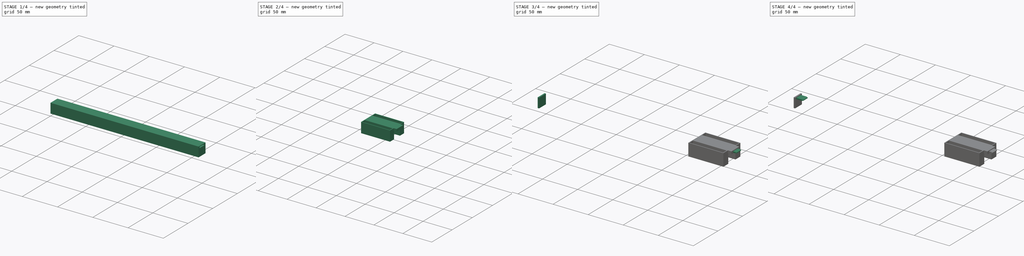
[diagram: build sequence overview — one tinted view per stage of 4, left to right]
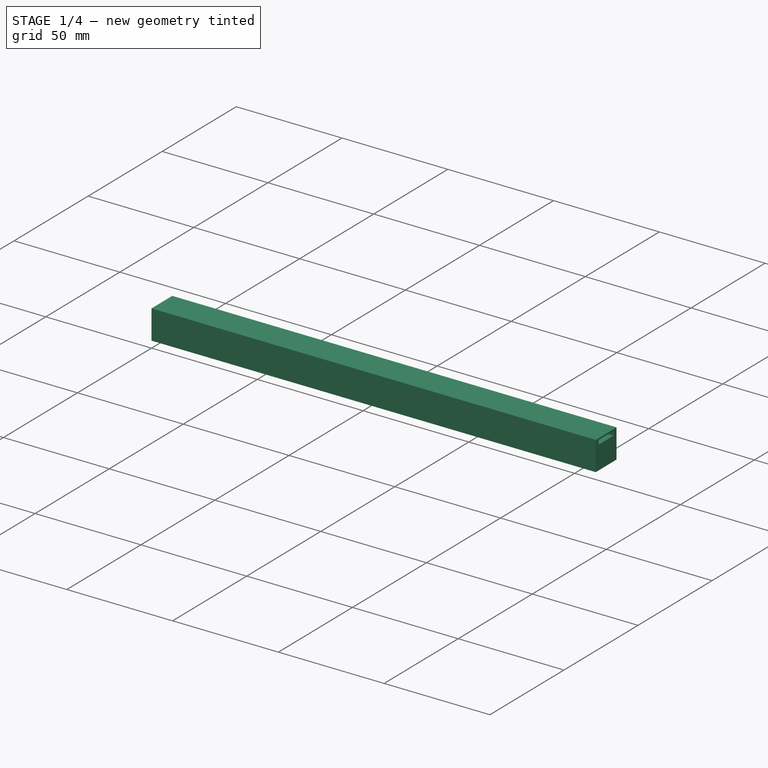
[diagram: stage 1 of 4 — iso view after this stage's code; geometry added in this stage tinted green]
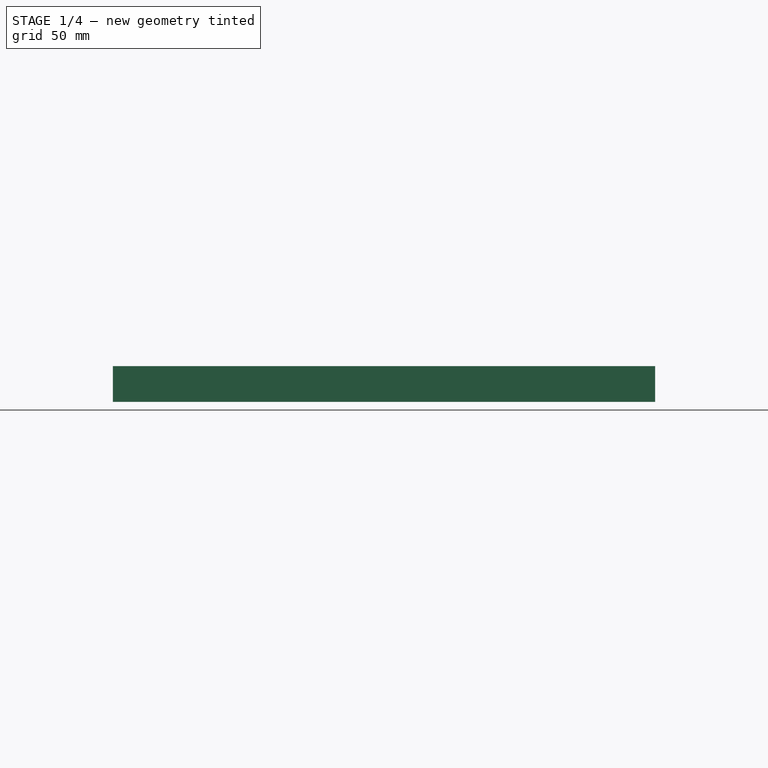
[diagram: stage 1 of 4 — front view after this stage's code; geometry added in this stage tinted green]
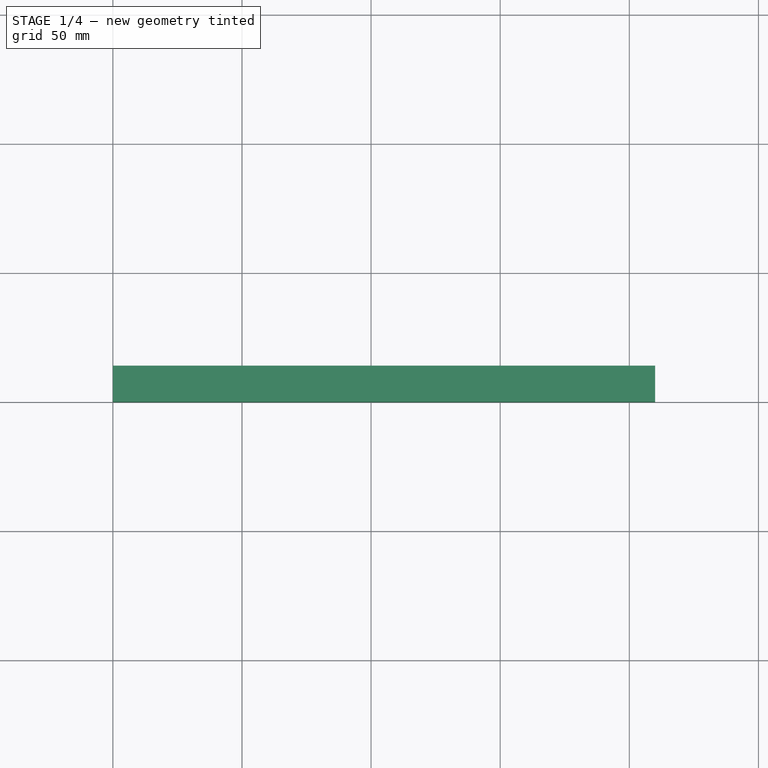
[diagram: stage 1 of 4 — top view after this stage's code; geometry added in this stage tinted green]
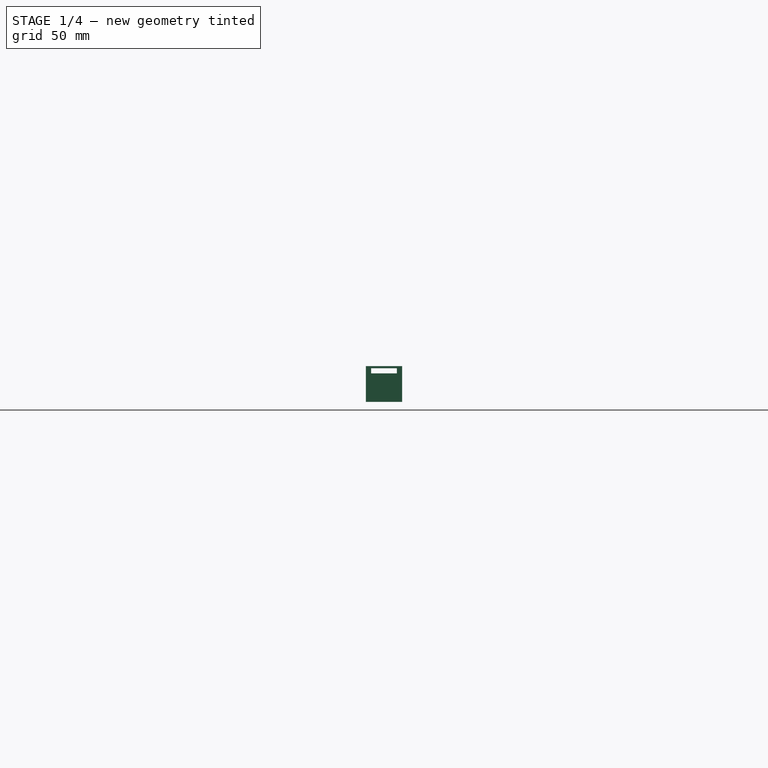
[diagram: stage 1 of 4 — right view after this stage's code; geometry added in this stage tinted green]
FCSTD DOCUMENT  (FreeCAD 0.21R33694 (Git))
Label: maglev3
License: All rights reserved
LicenseURL: http://en.wikipedia.org/wiki/All_rights_reserved
objects: Sketcher::SketchObject×8, PartDesign::Pad×6, PartDesign::Body×4, PartDesign::Pocket×2, PartDesign::Chamfer×2, PartDesign::ShapeBinder×2
note: 34 computed .brp shape members not serialized (recipe doc carries the construction recipe); baked Part::Feature solids carry a one-line shape summary decoded from their .brp

FEATURE [Sketcher::SketchObject] Sketch
  FullyConstrained = true
  MapMode = 5
  Support = -> [XY_Plane]
  sketch-geometry (4):
    g0: LineSegment StartX=0 StartY=0 StartZ=0 EndX=210 EndY=0 EndZ=0
    g1: LineSegment StartX=210 StartY=0 StartZ=0 EndX=210 EndY=14 EndZ=0
    g2: LineSegment StartX=210 StartY=14 StartZ=0 EndX=0 EndY=14 EndZ=0
    g3: LineSegment StartX=0 StartY=14 StartZ=0 EndX=0 EndY=0 EndZ=0
  constraints (11):
    c: Coincident(g0,g1)
    c: Coincident(g1,g2)
    c: Coincident(g2,g3)
    c: Coincident(g3,g0)
    c: Horizontal(g0)
    c: Horizontal(g2)
    c: Vertical(g1)
    c: Vertical(g3)
    c: Coincident(g0,g-1)
    c: DistanceX(g0,g0) = 210
    c: DistanceY(g3,g3) = 14
FEATURE [PartDesign::Pad] Pad
  Direction = (0,0,1)
  Length = 13.8
  Length2 = 10
  Profile = -> Sketch
  ReferenceAxis = -> Sketch [N_Axis]
  Type = 0
FEATURE [Sketcher::SketchObject] Sketch001
  ExternalGeometry = -> [Pad]
  FullyConstrained = true
  MapMode = 5
  Placement = pos=(0,0,0) rot=(0.57735,-0.57735,-0.57735;2.0944rad)
  Support = -> [Pad]
  sketch-geometry (6):
    g0: LineSegment StartX=-12 StartY=13 StartZ=0 EndX=-2 EndY=13 EndZ=0
    g1: LineSegment StartX=-2 StartY=13 StartZ=0 EndX=-2 EndY=11 EndZ=0
    g2: LineSegment StartX=-2 StartY=11 StartZ=0 EndX=-12 EndY=11 EndZ=0
    g3: LineSegment StartX=-12 StartY=11 StartZ=0 EndX=-12 EndY=13 EndZ=0
    g4: LineSegment StartX=-12 StartY=11 StartZ=0 EndX=-14 EndY=11 EndZ=0
    g5: LineSegment StartX=-2 StartY=11 StartZ=0 EndX=0 EndY=11 EndZ=0
  constraints (18):
    c: Coincident(g0,g1)
    c: Coincident(g1,g2)
    c: Coincident(g2,g3)
    c: Coincident(g3,g0)
    c: Horizontal(g0)
    c: Horizontal(g2)
    c: Vertical(g1)
    c: Vertical(g3)
    c: DistanceX(g2,g2) = 10
    c: DistanceY(g1,g1) = 2
    c: DistanceY(g0,g-3) = 0.8
    c: Coincident(g4,g2)
    c: PointOnObject(g4,g-5)
    c: Coincident(g5,g1)
    c: PointOnObject(g5,g-3)
    c: Horizontal(g5)
    c: Horizontal(g4)
    c: Equal(g5,g4)
FEATURE [PartDesign::Pocket] Pocket
  BaseFeature = -> Pad
  Direction = (1,0,0)
  Length = 5
  Length2 = 5
  Profile = -> Sketch001
  ReferenceAxis = -> Sketch001 [N_Axis]
  Type = 1
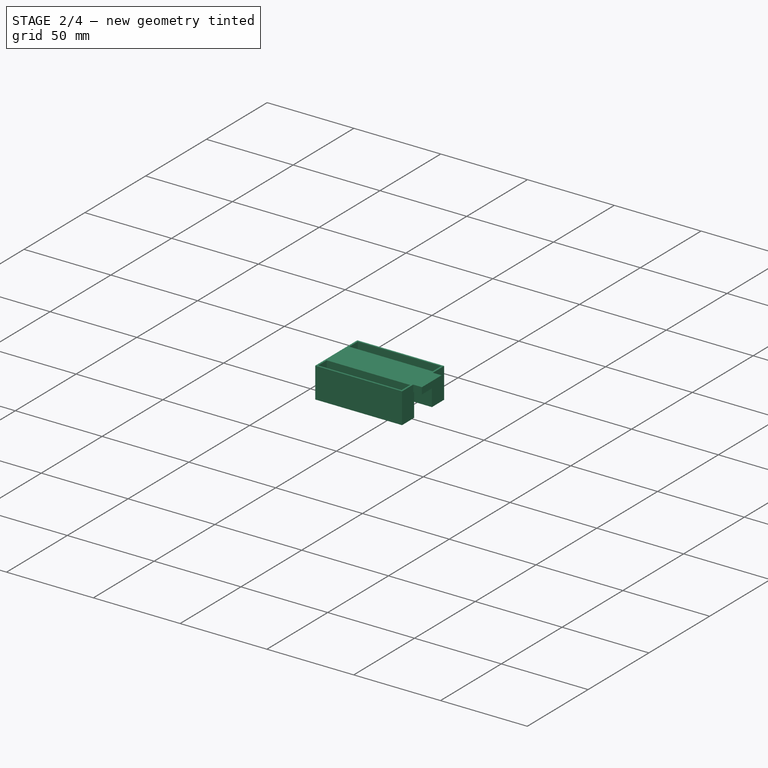
[diagram: stage 2 of 4 — iso view after this stage's code; geometry added in this stage tinted green]
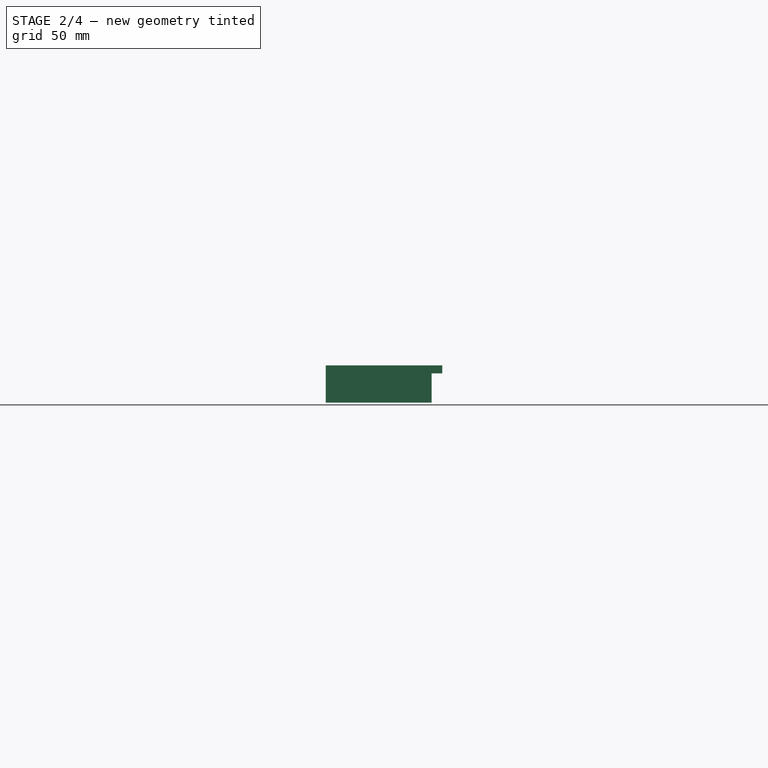
[diagram: stage 2 of 4 — front view after this stage's code; geometry added in this stage tinted green]
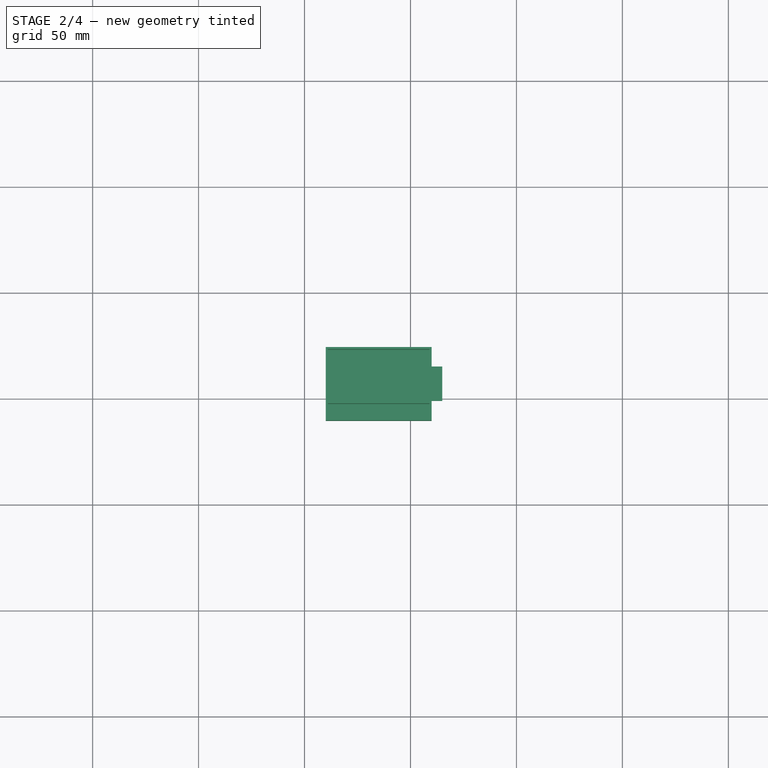
[diagram: stage 2 of 4 — top view after this stage's code; geometry added in this stage tinted green]
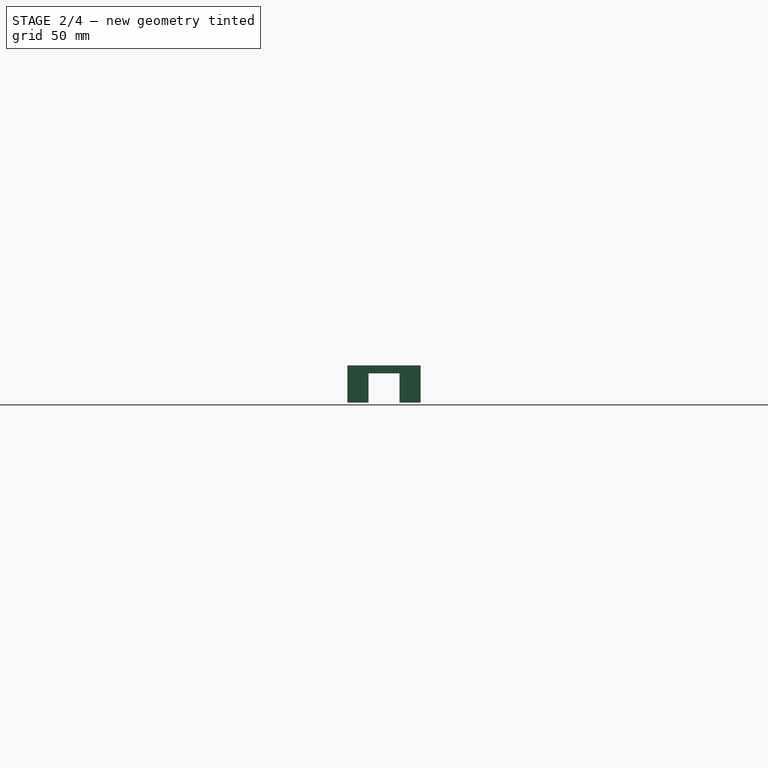
[diagram: stage 2 of 4 — right view after this stage's code; geometry added in this stage tinted green]
FEATURE [PartDesign::Body] Body001  label="Plug"
  Group = -> [Sketch002,Pad001,Sketch003,Pad002,Chamfer]
  Origin = -> Origin001
  Tip = -> Chamfer
FEATURE [PartDesign::ShapeBinder] ShapeBinder
  Support = -> [Pocket]
  TraceSupport = false
FEATURE [Sketcher::SketchObject] Sketch004
  ExternalGeometry = -> [ShapeBinder]
  FullyConstrained = true
  MapMode = 5
  Placement = pos=(210,0,0) rot=(0.57735,0.57735,0.57735;2.0944rad)
  Support = -> [ShapeBinder]
  sketch-geometry (16):
    g0: LineSegment StartX=-0.3 StartY=1 StartZ=0 EndX=-10.3 EndY=1 EndZ=0
    g1: LineSegment StartX=-10.3 StartY=1 StartZ=0 EndX=-10.3 EndY=18.6 EndZ=0
    g2: LineSegment StartX=-10.3 StartY=18.6 StartZ=0 EndX=24.3 EndY=18.6 EndZ=0
    g3: LineSegment StartX=24.3 StartY=18.6 StartZ=0 EndX=24.3 EndY=1 EndZ=0
    g4: LineSegment StartX=24.3 StartY=1 StartZ=0 EndX=14.3 EndY=1 EndZ=0
    g5: LineSegment StartX=14.3 StartY=1 StartZ=0 EndX=14.3 EndY=14.8 EndZ=0
    g6: LineSegment StartX=14.3 StartY=14.8 StartZ=0 EndX=-0.3 EndY=14.8 EndZ=0
    g7: LineSegment StartX=-0.3 StartY=14.8 StartZ=0 EndX=-0.3 EndY=1 EndZ=0
    g8: LineSegment StartX=-0.3 StartY=1 StartZ=0 EndX=0 EndY=1 EndZ=0
    g9: LineSegment StartX=14.3 StartY=1 StartZ=0 EndX=14 EndY=1 EndZ=0
    g10: LineSegment StartX=2 StartY=15.6 StartZ=0 EndX=12 EndY=15.6 EndZ=0
    g11: LineSegment StartX=12 StartY=15.6 StartZ=0 EndX=12 EndY=17.6 EndZ=0
    g12: LineSegment StartX=12 StartY=17.6 StartZ=0 EndX=2 EndY=17.6 EndZ=0
    g13: LineSegment StartX=2 StartY=17.6 StartZ=0 EndX=2 EndY=15.6 EndZ=0
    g14: LineSegment StartX=12 StartY=17.6 StartZ=0 EndX=24.3 EndY=17.6 EndZ=0
    g15: LineSegment StartX=2 StartY=17.6 StartZ=0 EndX=-10.3 EndY=17.6 EndZ=0
  constraints (48):
    c: Horizontal(g0)
    c: Coincident(g1,g0)
    c: Vertical(g1)
    c: Coincident(g2,g1)
    c: Horizontal(g2)
    c: Coincident(g3,g2)
    c: Vertical(g3)
    c: Coincident(g4,g3)
    c: Horizontal(g4)
    c: Coincident(g5,g4)
    c: Vertical(g5)
    c: Coincident(g6,g5)
    c: Horizontal(g6)
    c: Coincident(g7,g6)
    c: Coincident(g7,g0)
    c: Vertical(g7)
    c: Equal(g7,g5)
    c: Equal(g4,g0)
    c: Coincident(g8,g0)
    c: Horizontal(g8)
    c: Coincident(g9,g4)
    c: PointOnObject(g9,g-3)
    c: Horizontal(g9)
    c: DistanceY(g-4,g5) = 1
    c: Coincident(g10,g11)
    c: Coincident(g11,g12)
    c: Coincident(g12,g13)
    c: Coincident(g13,g10)
    c: Horizontal(g10)
    c: Horizontal(g12)
    c: Vertical(g11)
    c: Vertical(g13)
    c: DistanceX(g12,g12) = 10
    c: DistanceY(g11,g11) = 2
    c: DistanceY(g6,g10) = 0.8
    c: Coincident(g14,g11)
    c: PointOnObject(g14,g3)
    c: Horizontal(g14)
    c: Coincident(g15,g12)
    c: PointOnObject(g15,g1)
    c: Horizontal(g15)
    c: Equal(g15,g14)
    c: DistanceY(g11,g2) = 1
    c: Equal(g9,g8)
    c: PointOnObject(g8,g-2)
    c: DistanceX(g0,g0) = 10
    c: DistanceX(g-3,g4) = 0.3
    c: DistanceY(g-1,g0) = 1
FEATURE [PartDesign::Pad] Pad003
  Direction = (1,0,0)
  Length = 50
  Length2 = 10
  Profile = -> Sketch004
  ReferenceAxis = -> Sketch004 [N_Axis]
  Type = 0
FEATURE [PartDesign::ShapeBinder] ShapeBinder001
  Placement = pos=(50,0,0) rot=(0,0,1;0rad)
  Support = -> [Pad003]
  TraceSupport = false
FEATURE [Sketcher::SketchObject] Sketch005
  FullyConstrained = true
  MapMode = 5
  Placement = pos=(260,0,0) rot=(0.57735,0.57735,0.57735;2.0944rad)
  Support = -> [ShapeBinder001]
  sketch-geometry (4):
    g0: LineSegment StartX=-1.1 StartY=18.6 StartZ=0 EndX=15.1 EndY=18.6 EndZ=0
    g1: LineSegment StartX=15.1 StartY=18.6 StartZ=0 EndX=15.1 EndY=14.8 EndZ=0
    g2: LineSegment StartX=15.1 StartY=14.8 StartZ=0 EndX=-1.1 EndY=14.8 EndZ=0
    g3: LineSegment StartX=-1.1 StartY=14.8 StartZ=0 EndX=-1.1 EndY=18.6 EndZ=0
  constraints (12):
    c: Coincident(g0,g1)
    c: Coincident(g1,g2)
    c: Coincident(g2,g3)
    c: Coincident(g3,g0)
    c: Horizontal(g0)
    c: Horizontal(g2)
    c: Vertical(g1)
    c: Vertical(g3)
    c: DistanceX(g0,g0) = 16.2
    c: DistanceY(g1,g1) = 3.8
    c: DistanceY(g-1,g2) = 14.8
    c: DistanceX(g2,g-1) = 1.1
FEATURE [PartDesign::Pad] Pad004
  Direction = (1,0,0)
  Length = 5
  Length2 = 10
  Placement = pos=(50,0,0) rot=(0,0,1;0rad)
  Profile = -> Sketch005
  ReferenceAxis = -> Sketch005 [N_Axis]
  Type = 0
FEATURE [PartDesign::Body] Body003  label="loco plug"
  Group = -> [ShapeBinder001,Sketch005,Pad004,Sketch006,Pad005,Chamfer001]
  Origin = -> Origin003
  Tip = -> Chamfer001
FEATURE [Sketcher::SketchObject] Sketch007
  ExternalGeometry = -> [Pad003]
  FullyConstrained = true
  MapMode = 5
  Placement = pos=(0,0,18.6) rot=(0,0,1;0rad)
  Support = -> [Pad003]
  sketch-geometry (14):
    g0: LineSegment StartX=211 StartY=23.3 StartZ=0 EndX=259 EndY=23.3 EndZ=0
    g1: LineSegment StartX=259 StartY=23.3 StartZ=0 EndX=259 EndY=16.3 EndZ=0
    g2: LineSegment StartX=259 StartY=16.3 StartZ=0 EndX=211 EndY=16.3 EndZ=0
    g3: LineSegment StartX=211 StartY=16.3 StartZ=0 EndX=211 EndY=23.3 EndZ=0
    g4: LineSegment StartX=211 StartY=-2.3 StartZ=0 EndX=259 EndY=-2.3 EndZ=0
    g5: LineSegment StartX=259 StartY=-2.3 StartZ=0 EndX=259 EndY=-9.3 EndZ=0
    g6: LineSegment StartX=259 StartY=-9.3 StartZ=0 EndX=211 EndY=-9.3 EndZ=0
    g7: LineSegment StartX=211 StartY=-9.3 StartZ=0 EndX=211 EndY=-2.3 EndZ=0
    g8: LineSegment StartX=211 StartY=23.3 StartZ=0 EndX=210 EndY=23.3 EndZ=0
    g9: LineSegment StartX=211 StartY=23.3 StartZ=0 EndX=211 EndY=24.3 EndZ=0
    g10: LineSegment StartX=259 StartY=23.3 StartZ=0 EndX=260 EndY=23.3 EndZ=0
    g11: LineSegment StartX=259 StartY=-9.3 StartZ=0 EndX=260 EndY=-9.3 EndZ=0
    g12: LineSegment StartX=211 StartY=-9.3 StartZ=0 EndX=210 EndY=-9.3 EndZ=0
    g13: LineSegment StartX=211 StartY=-9.3 StartZ=0 EndX=211 EndY=-10.3 EndZ=0
  constraints (42):
    c: Coincident(g0,g1)
    c: Coincident(g1,g2)
    c: Coincident(g2,g3)
    c: Coincident(g3,g0)
    c: Horizontal(g0)
    c: Horizontal(g2)
    c: Vertical(g1)
    c: Vertical(g3)
    c: Coincident(g4,g5)
    c: Coincident(g5,g6)
    c: Coincident(g6,g7)
    c: Coincident(g7,g4)
    c: Horizontal(g4)
    c: Horizontal(g6)
    c: Vertical(g5)
    c: Vertical(g7)
    c: Coincident(g8,g0)
    c: PointOnObject(g8,g-4)
    c: Horizontal(g8)
    c: Coincident(g9,g0)
    c: PointOnObject(g9,g-3)
    c: Coincident(g10,g0)
    c: PointOnObject(g10,g-6)
    c: Horizontal(g10)
    c: Coincident(g11,g5)
    c: PointOnObject(g11,g-6)
    c: Horizontal(g11)
    c: Coincident(g12,g6)
    c: PointOnObject(g12,g-4)
    c: Horizontal(g12)
    c: Coincident(g13,g6)
    c: PointOnObject(g13,g-5)
    c: Vertical(g13)
    c: Vertical(g9)
    c: Equal(g8,g9)
    c: Equal(g9,g10)
    c: Equal(g10,g11)
    c: Equal(g11,g13)
    c: Equal(g13,g12)
    c: DistanceX(g-5,g6) = 1
    c: Equal(g5,g1)
    c: DistanceY(g5,g5) = 7
FEATURE [PartDesign::Pocket] Pocket001
  BaseFeature = -> Pad003
  Direction = (0,0,-1)
  Length = 16
  Length2 = 5
  Profile = -> Sketch007
  ReferenceAxis = -> Sketch007 [N_Axis]
  Type = 0
FEATURE [PartDesign::Body] Body002  label="Loco"
  Group = -> [ShapeBinder,Sketch004,Pad003,Sketch007,Pocket001]
  Origin = -> Origin002
  Tip = -> Pocket001
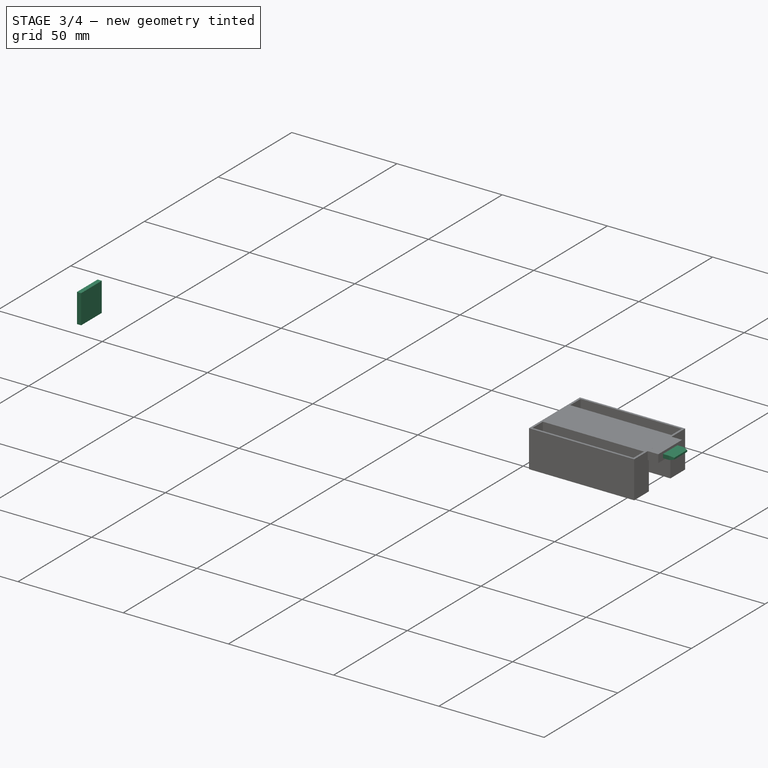
[diagram: stage 3 of 4 — iso view after this stage's code; geometry added in this stage tinted green]
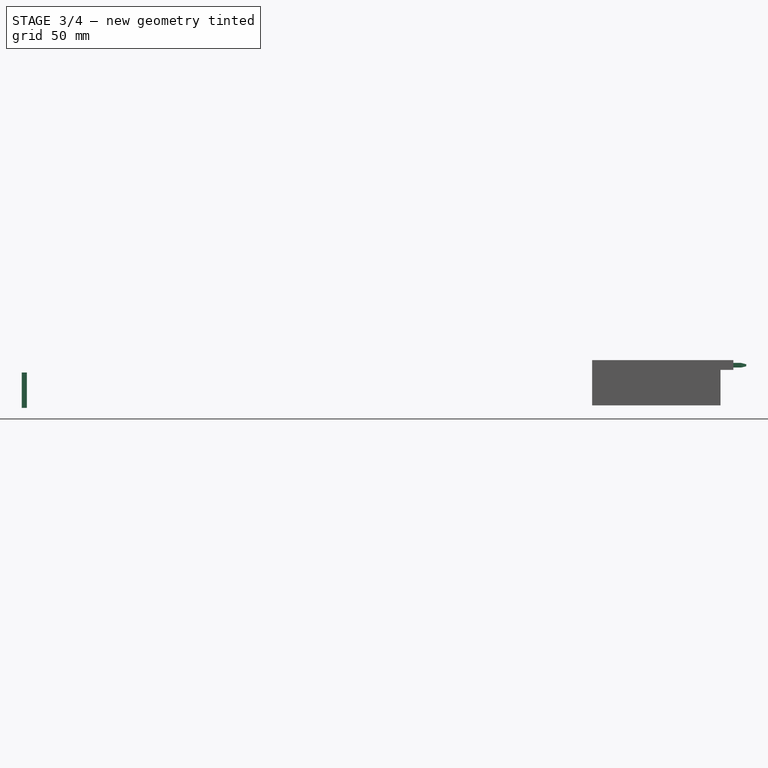
[diagram: stage 3 of 4 — front view after this stage's code; geometry added in this stage tinted green]
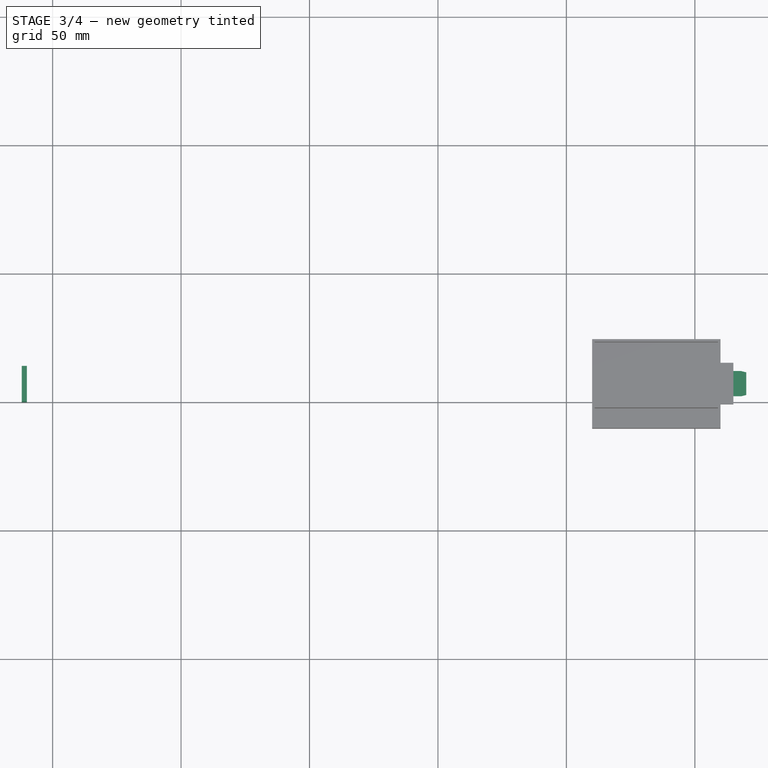
[diagram: stage 3 of 4 — top view after this stage's code; geometry added in this stage tinted green]
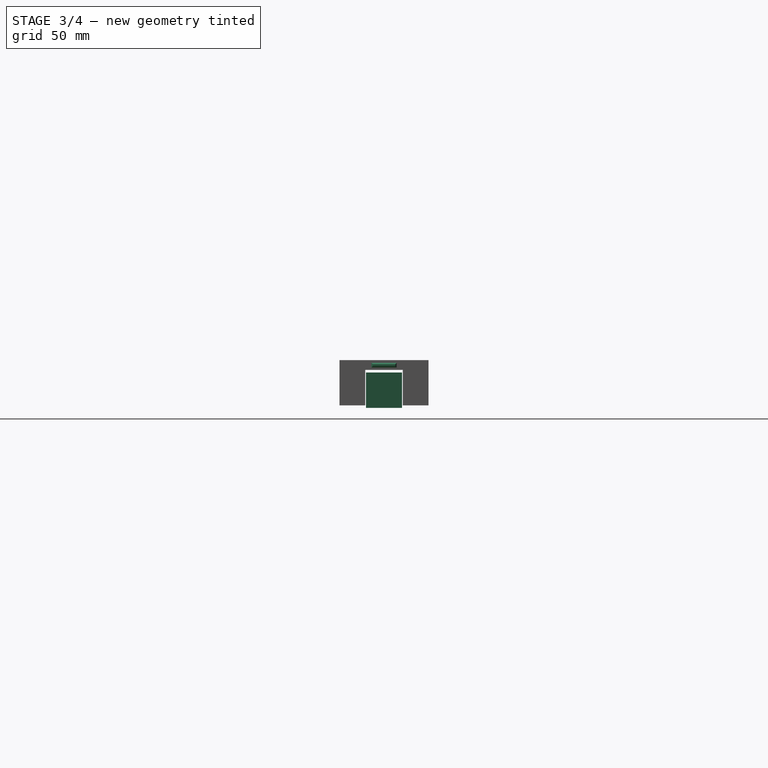
[diagram: stage 3 of 4 — right view after this stage's code; geometry added in this stage tinted green]
FEATURE [PartDesign::Body] Body  label="Rail"
  Group = -> [Sketch,Pad,Sketch001,Pocket]
  Origin = -> Origin
  Tip = -> Pocket
FEATURE [Sketcher::SketchObject] Sketch002
  FullyConstrained = true
  MapMode = 5
  Placement = pos=(0,0,0) rot=(0.57735,0.57735,0.57735;2.0944rad)
  Support = -> [YZ_Plane001]
  sketch-geometry (4):
    g0: LineSegment StartX=0 StartY=0 StartZ=0 EndX=14 EndY=0 EndZ=0
    g1: LineSegment StartX=14 StartY=0 StartZ=0 EndX=14 EndY=13.8 EndZ=0
    g2: LineSegment StartX=14 StartY=13.8 StartZ=0 EndX=0 EndY=13.8 EndZ=0
    g3: LineSegment StartX=0 StartY=13.8 StartZ=0 EndX=0 EndY=0 EndZ=0
  constraints (11):
    c: Coincident(g0,g1)
    c: Coincident(g1,g2)
    c: Coincident(g2,g3)
    c: Coincident(g3,g0)
    c: Horizontal(g0)
    c: Horizontal(g2)
    c: Vertical(g1)
    c: Vertical(g3)
    c: Coincident(g0,g-1)
    c: DistanceX(g0,g0) = 14
    c: DistanceY(g1,g1) = 13.8
FEATURE [PartDesign::Pad] Pad001
  Direction = (1,-2e-16,3e-16)
  Length = 10
  Length2 = -12
  Placement = pos=(0,0,0) rot=(0.57735,0.57735,0.57735;2.0944rad)
  Profile = -> Sketch002
  ReferenceAxis = -> Sketch002 [N_Axis]
  Reversed = true
  Type = 4
FEATURE [Sketcher::SketchObject] Sketch006
  ExternalGeometry = -> [Pad004]
  FullyConstrained = true
  MapMode = 5
  Placement = pos=(265,0,0) rot=(0.57735,0.57735,0.57735;2.0944rad)
  Support = -> [Pad004]
  sketch-geometry (6):
    g0: LineSegment StartX=2.1 StartY=17.5 StartZ=0 EndX=11.9 EndY=17.5 EndZ=0
    g1: LineSegment StartX=11.9 StartY=17.5 StartZ=0 EndX=11.9 EndY=15.7 EndZ=0
    g2: LineSegment StartX=11.9 StartY=15.7 StartZ=0 EndX=2.1 EndY=15.7 EndZ=0
    g3: LineSegment StartX=2.1 StartY=15.7 StartZ=0 EndX=2.1 EndY=17.5 EndZ=0
    g4: LineSegment StartX=11.9 StartY=17.5 StartZ=0 EndX=15.1 EndY=17.5 EndZ=0
    g5: LineSegment StartX=2.1 StartY=17.5 StartZ=0 EndX=-1.1 EndY=17.5 EndZ=0
  constraints (18):
    c: Coincident(g0,g1)
    c: Coincident(g1,g2)
    c: Coincident(g2,g3)
    c: Coincident(g3,g0)
    c: Horizontal(g0)
    c: Horizontal(g2)
    c: Vertical(g1)
    c: Vertical(g3)
    c: DistanceX(g2,g2) = 9.8
    c: DistanceY(g1,g1) = 1.8
    c: Coincident(g4,g0)
    c: PointOnObject(g4,g-4)
    c: Horizontal(g4)
    c: Coincident(g5,g0)
    c: PointOnObject(g5,g-6)
    c: Horizontal(g5)
    c: Equal(g5,g4)
    c: DistanceY(g-4,g1) = 0.9
FEATURE [PartDesign::Pad] Pad005
  BaseFeature = -> Pad004
  Direction = (1,0,0)
  Length = 5
  Length2 = 10
  Placement = pos=(50,0,0) rot=(0,0,1;0rad)
  Profile = -> Sketch006
  ReferenceAxis = -> Sketch006 [N_Axis]
  Type = 0
FEATURE [PartDesign::Chamfer] Chamfer001
  Angle = 45
  Base = -> Pad005 [Edge19,Edge21,Edge24,Edge23]
  BaseFeature = -> Pad005
  ChamferType = 1
  FlipDirection = false
  Placement = pos=(50,0,0) rot=(0,0,1;0rad)
  Size = 2
  Size2 = 0.5
  SupportTransform = false
  UseAllEdges = false
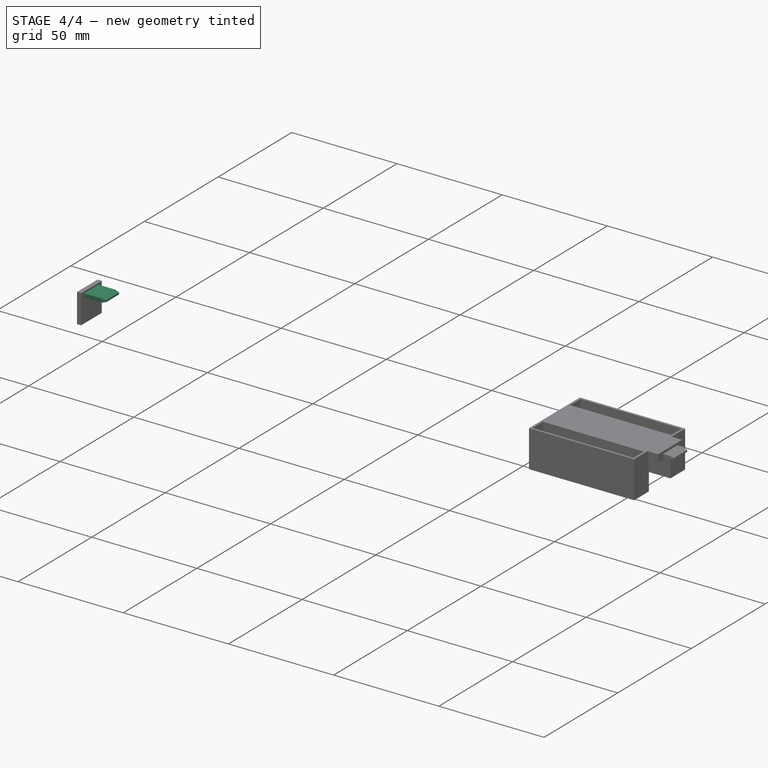
[diagram: stage 4 of 4 — iso view after this stage's code; geometry added in this stage tinted green]
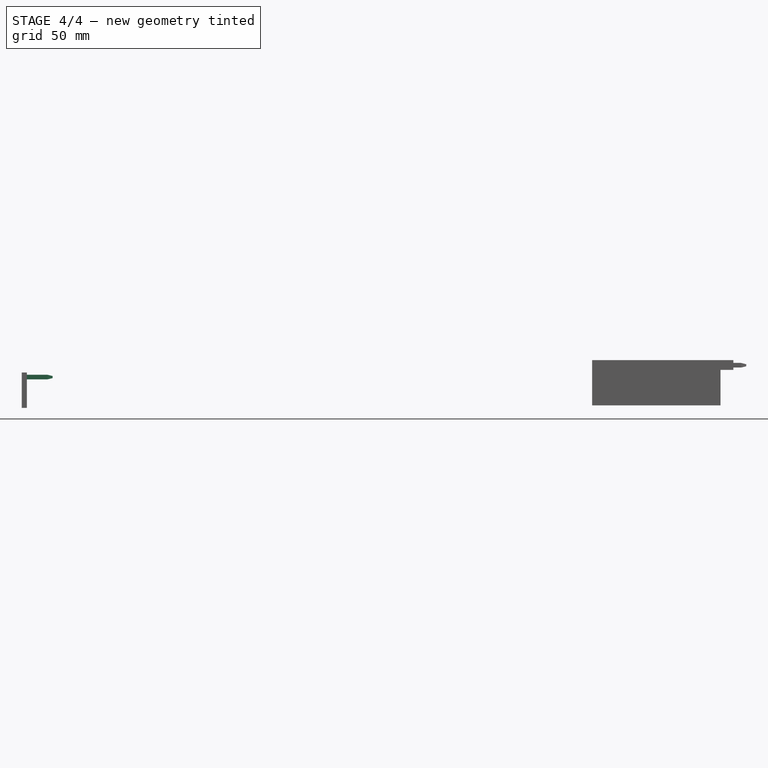
[diagram: stage 4 of 4 — front view after this stage's code; geometry added in this stage tinted green]
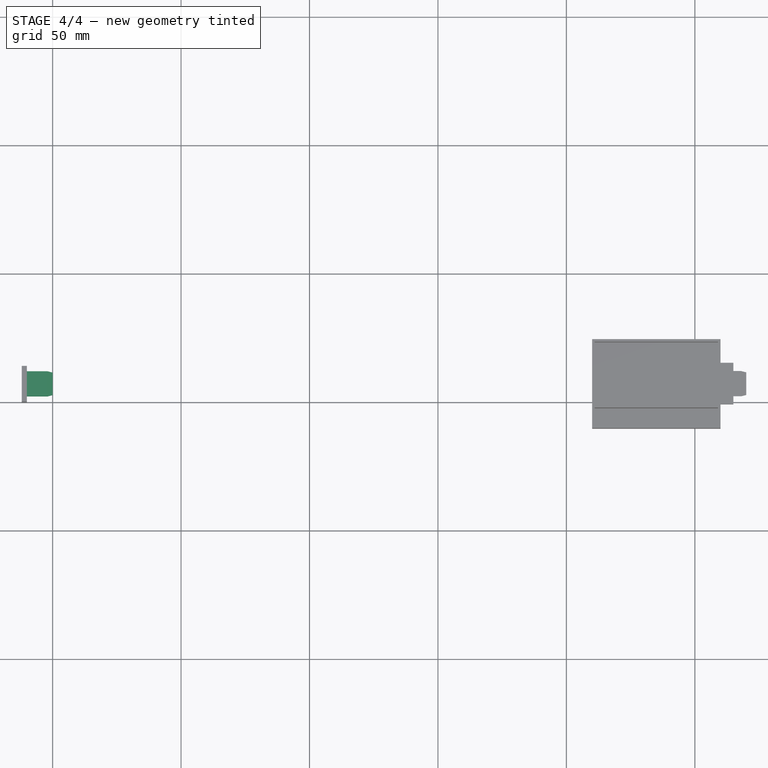
[diagram: stage 4 of 4 — top view after this stage's code; geometry added in this stage tinted green]
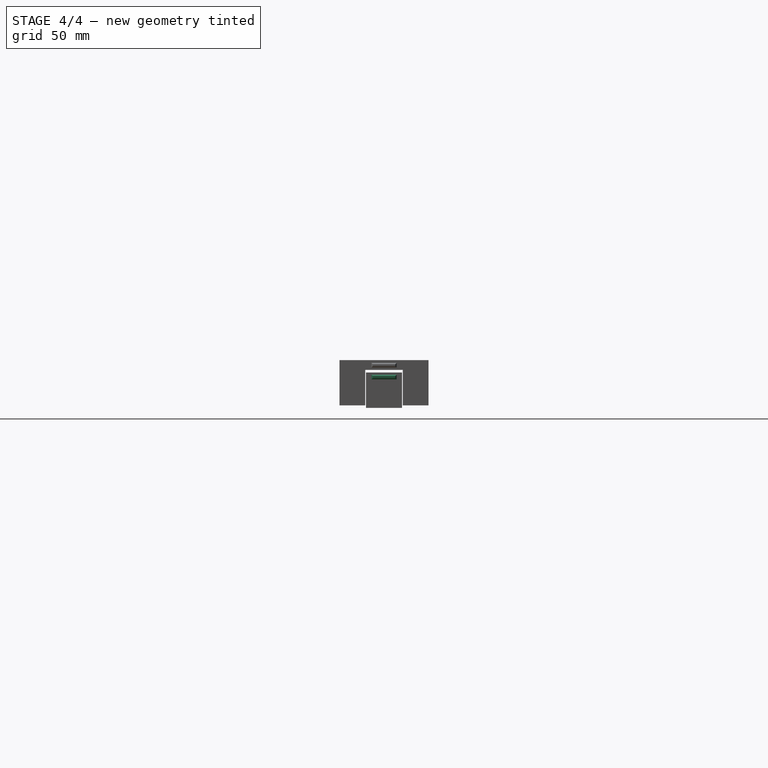
[diagram: stage 4 of 4 — right view after this stage's code; geometry added in this stage tinted green]
FEATURE [Sketcher::SketchObject] Sketch003
  ExternalGeometry = -> [Pad001]
  FullyConstrained = true
  MapMode = 5
  Placement = pos=(-10,2.2e-15,-2.2e-15) rot=(0.57735,0.57735,0.57735;2.0944rad)
  Support = -> [Pad001]
  sketch-geometry (6):
    g0: LineSegment StartX=2.1 StartY=12.9 StartZ=0 EndX=11.9 EndY=12.9 EndZ=0
    g1: LineSegment StartX=11.9 StartY=12.9 StartZ=0 EndX=11.9 EndY=11.1 EndZ=0
    g2: LineSegment StartX=11.9 StartY=11.1 StartZ=0 EndX=2.1 EndY=11.1 EndZ=0
    g3: LineSegment StartX=2.1 StartY=11.1 StartZ=0 EndX=2.1 EndY=12.9 EndZ=0
    g4: LineSegment StartX=11.9 StartY=11.1 StartZ=0 EndX=14 EndY=11.1 EndZ=0
    g5: LineSegment StartX=2.1 StartY=11.1 StartZ=0 EndX=0 EndY=11.1 EndZ=0
  constraints (18):
    c: Coincident(g0,g1)
    c: Coincident(g1,g2)
    c: Coincident(g2,g3)
    c: Coincident(g3,g0)
    c: Horizontal(g0)
    c: Horizontal(g2)
    c: Vertical(g1)
    c: Vertical(g3)
    c: DistanceX(g2,g2) = 9.8
    c: DistanceY(g1,g1) = 1.8
    c: DistanceY(g0,g-4) = 0.9
    c: Coincident(g4,g1)
    c: PointOnObject(g4,g-5)
    c: Horizontal(g4)
    c: Coincident(g5,g2)
    c: PointOnObject(g5,g-3)
    c: Horizontal(g5)
    c: Equal(g5,g4)
FEATURE [PartDesign::Pad] Pad002
  BaseFeature = -> Pad001
  Direction = (1,-2e-16,2e-16)
  Length = 10
  Length2 = 10
  Placement = pos=(0,0,0) rot=(0.57735,0.57735,0.57735;2.0944rad)
  Profile = -> Sketch003
  ReferenceAxis = -> Sketch003 [N_Axis]
  Type = 0
FEATURE [PartDesign::Chamfer] Chamfer
  Angle = 45
  Base = -> Pad002 [Edge24,Edge19,Edge21,Edge23]
  BaseFeature = -> Pad002
  ChamferType = 1
  FlipDirection = false
  Placement = pos=(0,0,0) rot=(0.57735,0.57735,0.57735;2.0944rad)
  Size = 2
  Size2 = 0.5
  SupportTransform = false
  UseAllEdges = false
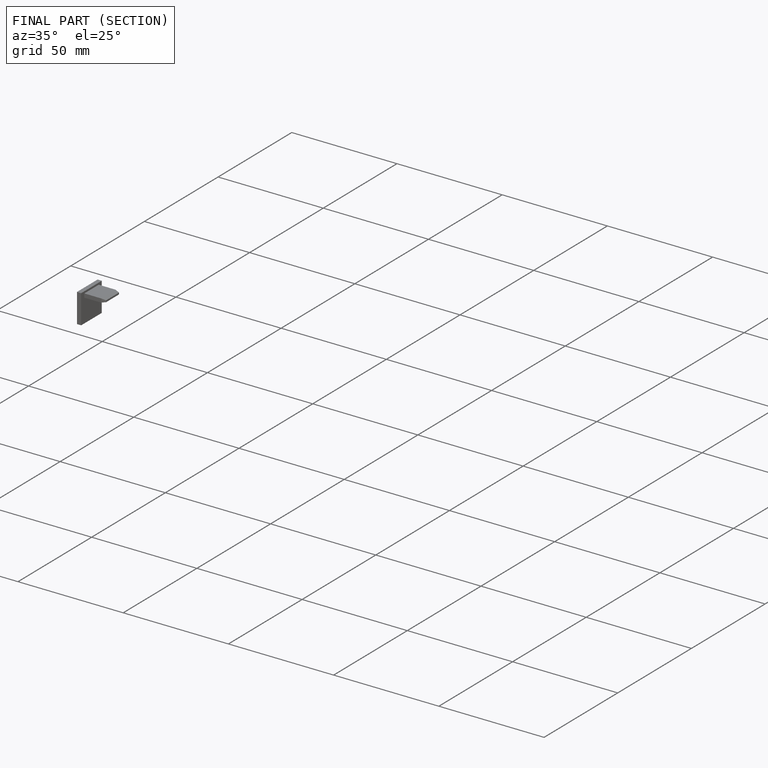
[diagram: finished part — half-section view (interior)]
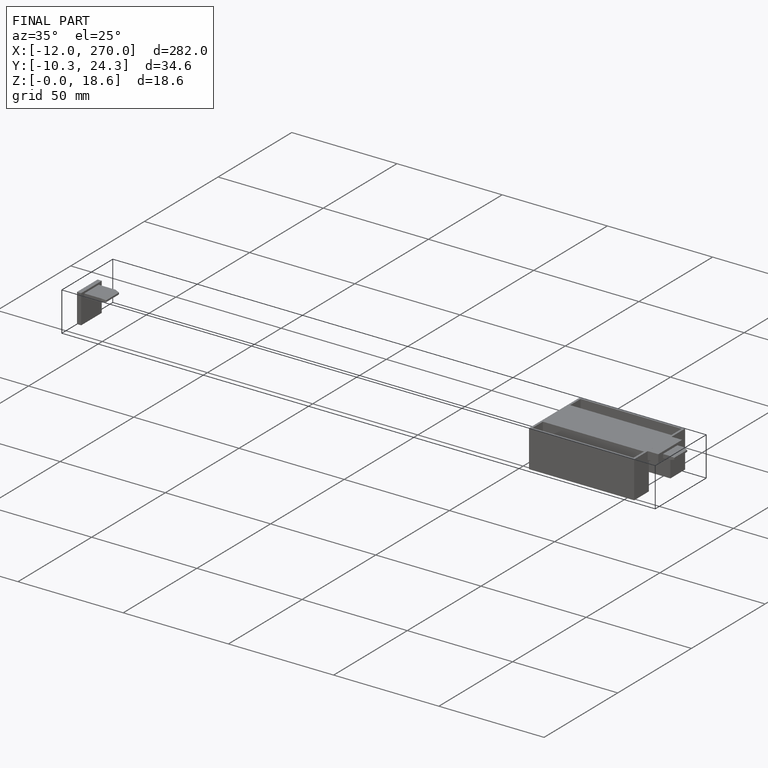
[diagram: finished part — iso view with bounding-box wireframe]
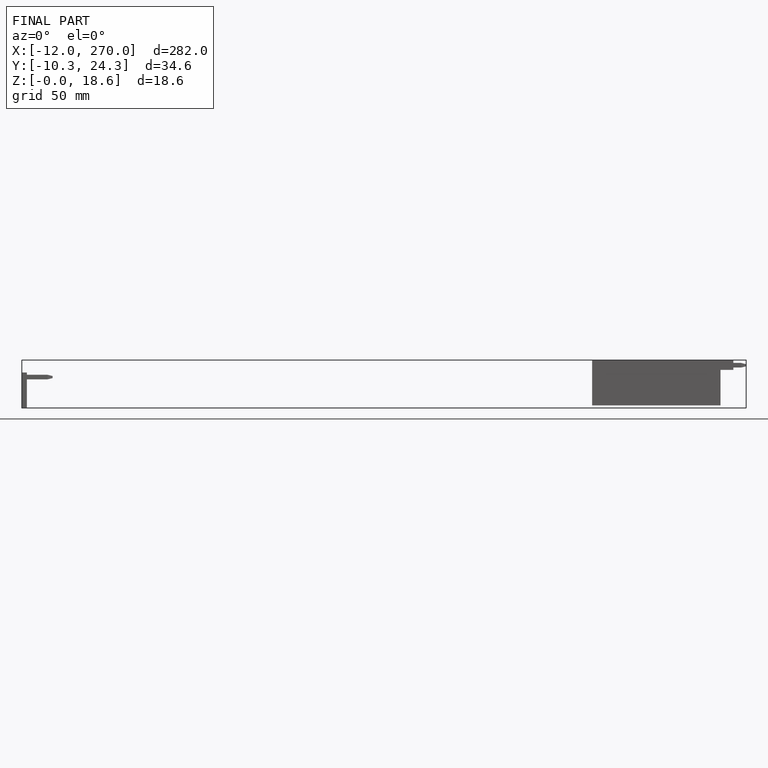
[diagram: finished part — front view with bounding-box wireframe]
